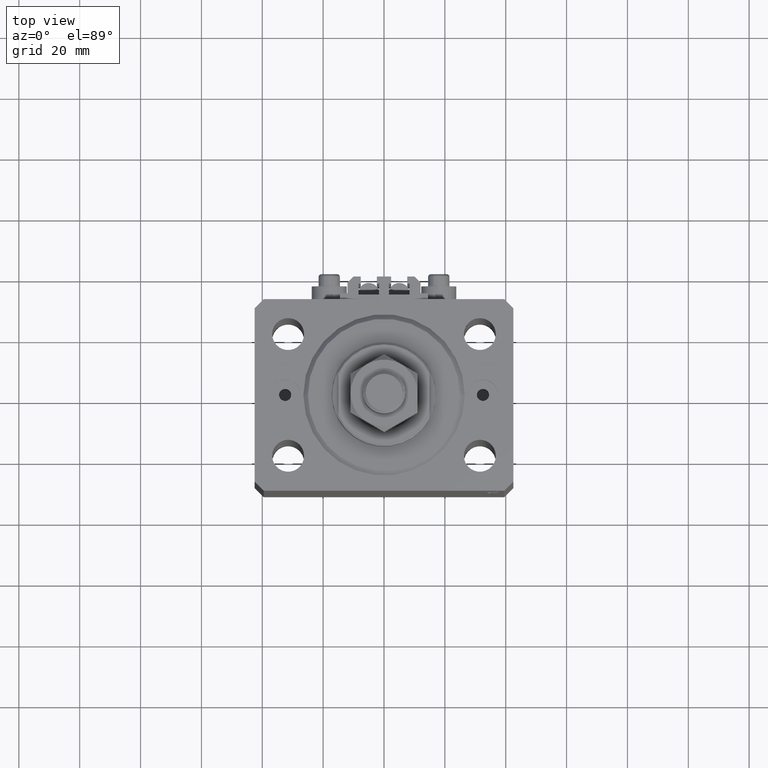
[diagram: clean part render]
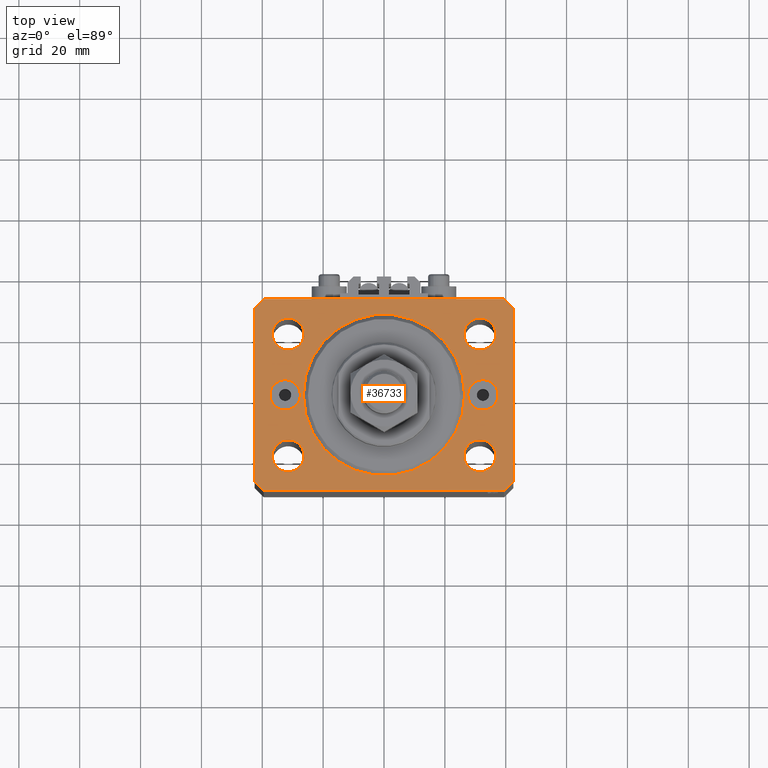
[diagram: same view with one face highlighted and labeled with its STEP entity id]
A machine part, top view. The second image highlights one B-rep face of the part: STEP entity #36733.
In plain terms, the highlighted planar face has unit normal (0, 0, 1).
Its self-contained STEP definition (entity closure, byte-faithful):
#212 = VERTEX_POINT ( 'NONE', #16234 ) ;
#606 = ORIENTED_EDGE ( 'NONE', *, *, #2875, .T. ) ;
#922 = VERTEX_POINT ( 'NONE', #44685 ) ;
#1620 = AXIS2_PLACEMENT_3D ( 'NONE', #5911, #2130, #32990 ) ;
#2130 = DIRECTION ( 'NONE',  ( 0.000000000000000000, 0.000000000000000000, 1.000000000000000000 ) ) ;
#2852 = CIRCLE ( 'NONE', #43688, 5.250000000000000888 ) ;
#2875 = EDGE_CURVE ( 'NONE', #922, #26911, #9402, .T. ) ;
#3249 = AXIS2_PLACEMENT_3D ( 'NONE', #14945, #18228, #10712 ) ;
#3610 = CARTESIAN_POINT ( 'NONE',  ( 42.50000000000051870, 28.49999999999995381, 0.000000000000000000 ) ) ;
#3971 = DIRECTION ( 'NONE',  ( 1.000000000000000000, 0.000000000000000000, 0.000000000000000000 ) ) ;
#4502 = LINE ( 'NONE', #5006, #45308 ) ;
#5006 = CARTESIAN_POINT ( 'NONE',  ( 39.50000000000000711, -31.50000000000000000, 0.000000000000000000 ) ) ;
#5229 = DIRECTION ( 'NONE',  ( 0.000000000000000000, 0.000000000000000000, 1.000000000000000000 ) ) ;
#5304 = VERTEX_POINT ( 'NONE', #11936 ) ;
#5405 = CARTESIAN_POINT ( 'NONE',  ( 0.000000000000000000, 0.000000000000000000, 0.000000000000000000 ) ) ;
#5911 = CARTESIAN_POINT ( 'NONE',  ( -31.50000000000000000, 19.99999999999999645, 0.000000000000000000 ) ) ;
#5969 = CARTESIAN_POINT ( 'NONE',  ( -36.75000000000000000, 19.99999999999999645, 0.000000000000000000 ) ) ;
#6235 = VERTEX_POINT ( 'NONE', #11644 ) ;
#6364 = EDGE_CURVE ( 'NONE', #17640, #5304, #10362, .T. ) ;
#6370 = ORIENTED_EDGE ( 'NONE', *, *, #23222, .F. ) ;
#6470 = CIRCLE ( 'NONE', #43303, 26.50000000000000355 ) ;
#6551 = DIRECTION ( 'NONE',  ( 1.000000000000000000, 0.000000000000000000, 0.000000000000000000 ) ) ;
#6722 = CIRCLE ( 'NONE', #13118, 5.249999999999997335 ) ;
#6811 = CARTESIAN_POINT ( 'NONE',  ( -32.50000000000000000, 0.000000000000000000, 0.000000000000000000 ) ) ;
#7024 = CARTESIAN_POINT ( 'NONE',  ( 31.49999999999999289, -20.00000000000000355, 0.000000000000000000 ) ) ;
#7075 = VECTOR ( 'NONE', #36672, 1000.000000000000000 ) ;
#7345 = DIRECTION ( 'NONE',  ( 0.000000000000000000, 0.000000000000000000, 1.000000000000000000 ) ) ;
#7350 = LINE ( 'NONE', #45955, #29266 ) ;
#7504 = EDGE_LOOP ( 'NONE', ( #30915, #37393 ) ) ;
#7519 = DIRECTION ( 'NONE',  ( 1.000000000000000000, 0.000000000000000000, 0.000000000000000000 ) ) ;
#7549 = VERTEX_POINT ( 'NONE', #5969 ) ;
#7674 = DIRECTION ( 'NONE',  ( 0.000000000000000000, -0.000000000000000000, -1.000000000000000000 ) ) ;
#7904 = ORIENTED_EDGE ( 'NONE', *, *, #42709, .T. ) ;
#8397 = EDGE_CURVE ( 'NONE', #30113, #6235, #15119, .T. ) ;
#8727 = ORIENTED_EDGE ( 'NONE', *, *, #42234, .T. ) ;
#9244 = DIRECTION ( 'NONE',  ( 1.000000000000000000, 0.000000000000000000, 0.000000000000000000 ) ) ;
#9402 = LINE ( 'NONE', #31954, #28573 ) ;
#9442 = CARTESIAN_POINT ( 'NONE',  ( -26.24999999999999289, -20.00000000000000355, 0.000000000000000000 ) ) ;
#9545 = DIRECTION ( 'NONE',  ( 1.000000000000000000, 0.000000000000000000, 0.000000000000000000 ) ) ;
#9763 = VERTEX_POINT ( 'NONE', #24993 ) ;
#10223 = EDGE_CURVE ( 'NONE', #47374, #21364, #23888, .T. ) ;
#10362 = LINE ( 'NONE', #13352, #7075 ) ;
#10383 = FACE_BOUND ( 'NONE', #45988, .T. ) ;
#10538 = CARTESIAN_POINT ( 'NONE',  ( 26.25000000000000355, 19.99999999999999289, 0.000000000000000000 ) ) ;
#10632 = FACE_OUTER_BOUND ( 'NONE', #14058, .T. ) ;
#10712 = DIRECTION ( 'NONE',  ( 1.000000000000000000, 0.000000000000000000, 0.000000000000000000 ) ) ;
#11112 = FACE_BOUND ( 'NONE', #25069, .T. ) ;
#11281 = AXIS2_PLACEMENT_3D ( 'NONE', #5405, #24236, #43044 ) ;
#11644 = CARTESIAN_POINT ( 'NONE',  ( 36.75000000000000000, 19.99999999999999289, 0.000000000000000000 ) ) ;
#11848 = DIRECTION ( 'NONE',  ( 0.000000000000000000, 0.000000000000000000, 1.000000000000000000 ) ) ;
#11936 = CARTESIAN_POINT ( 'NONE',  ( -39.50000000000000711, -31.50000000000000000, 0.000000000000000000 ) ) ;
#11970 = DIRECTION ( 'NONE',  ( 0.000000000000000000, 0.000000000000000000, 1.000000000000000000 ) ) ;
#12526 = ORIENTED_EDGE ( 'NONE', *, *, #6364, .T. ) ;
#12891 = CARTESIAN_POINT ( 'NONE',  ( 27.50000000000000355, 6.123233995736762338E-16, 0.000000000000000000 ) ) ;
#12963 = EDGE_LOOP ( 'NONE', ( #44095, #44669 ) ) ;
#13118 = AXIS2_PLACEMENT_3D ( 'NONE', #49135, #30304, #3971 ) ;
#13241 = VERTEX_POINT ( 'NONE', #31563 ) ;
#13328 = DIRECTION ( 'NONE',  ( -1.000000000000000000, 0.000000000000000000, 0.000000000000000000 ) ) ;
#13352 = CARTESIAN_POINT ( 'NONE',  ( -42.50000000000000000, -28.50000000000000000, 0.000000000000000000 ) ) ;
#13791 = CARTESIAN_POINT ( 'NONE',  ( 37.50000000000000000, 0.000000000000000000, 0.000000000000000000 ) ) ;
#14058 = EDGE_LOOP ( 'NONE', ( #35463, #30156, #8727, #12526, #19887, #7904, #606, #41881 ) ) ;
#14114 = CARTESIAN_POINT ( 'NONE',  ( -39.50000000000000711, 31.50000000000000000, 0.000000000000000000 ) ) ;
#14705 = CARTESIAN_POINT ( 'NONE',  ( 32.50000000000000000, 0.000000000000000000, 0.000000000000000000 ) ) ;
#14945 = CARTESIAN_POINT ( 'NONE',  ( -31.49999999999999289, -20.00000000000000355, 0.000000000000000000 ) ) ;
#15119 = CIRCLE ( 'NONE', #46376, 5.249999999999997335 ) ;
#16229 = VERTEX_POINT ( 'NONE', #32176 ) ;
#16234 = CARTESIAN_POINT ( 'NONE',  ( 26.50000000000000355, 0.000000000000000000, 0.000000000000000000 ) ) ;
#16436 = CIRCLE ( 'NONE', #46055, 5.249999999999997335 ) ;
#16831 = ORIENTED_EDGE ( 'NONE', *, *, #28376, .F. ) ;
#16930 = DIRECTION ( 'NONE',  ( 0.000000000000000000, -0.000000000000000000, -1.000000000000000000 ) ) ;
#17163 = CIRCLE ( 'NONE', #26759, 4.999999999999997335 ) ;
#17640 = VERTEX_POINT ( 'NONE', #42873 ) ;
#18228 = DIRECTION ( 'NONE',  ( 0.000000000000000000, 0.000000000000000000, 1.000000000000000000 ) ) ;
#18391 = DIRECTION ( 'NONE',  ( 1.000000000000000000, 0.000000000000000000, -0.000000000000000000 ) ) ;
#18445 = CIRCLE ( 'NONE', #48070, 5.250000000000000888 ) ;
#18889 = DIRECTION ( 'NONE',  ( 0.000000000000000000, -1.000000000000000000, 0.000000000000000000 ) ) ;
#19295 = CIRCLE ( 'NONE', #42527, 5.000000000000000888 ) ;
#19887 = ORIENTED_EDGE ( 'NONE', *, *, #36995, .T. ) ;
#20786 = DIRECTION ( 'NONE',  ( 1.000000000000000000, 0.000000000000000000, 0.000000000000000000 ) ) ;
#20871 = ORIENTED_EDGE ( 'NONE', *, *, #8397, .F. ) ;
#20876 = CIRCLE ( 'NONE', #1620, 5.250000000000000888 ) ;
#21284 = VERTEX_POINT ( 'NONE', #44145 ) ;
#21364 = VERTEX_POINT ( 'NONE', #34326 ) ;
#21374 = CARTESIAN_POINT ( 'NONE',  ( -31.50000000000000000, 19.99999999999999645, 0.000000000000000000 ) ) ;
#21402 = DIRECTION ( 'NONE',  ( -0.7071067811865471286, -0.7071067811865479058, 0.000000000000000000 ) ) ;
#21700 = EDGE_CURVE ( 'NONE', #43132, #16229, #18445, .T. ) ;
#21931 = EDGE_LOOP ( 'NONE', ( #39087, #16831 ) ) ;
#22348 = VERTEX_POINT ( 'NONE', #32986 ) ;
#22399 = CARTESIAN_POINT ( 'NONE',  ( 0.000000000000000000, 0.000000000000000000, 0.000000000000000000 ) ) ;
#22484 = CIRCLE ( 'NONE', #3249, 5.250000000000000888 ) ;
#22545 = ORIENTED_EDGE ( 'NONE', *, *, #35188, .F. ) ;
#22936 = AXIS2_PLACEMENT_3D ( 'NONE', #14705, #7674, #26241 ) ;
#23111 = EDGE_CURVE ( 'NONE', #22348, #212, #27270, .T. ) ;
#23222 = EDGE_CURVE ( 'NONE', #9763, #7549, #20876, .T. ) ;
#23888 = LINE ( 'NONE', #24877, #23999 ) ;
#23999 = VECTOR ( 'NONE', #13328, 1000.000000000000000 ) ;
#24236 = DIRECTION ( 'NONE',  ( 0.000000000000000000, 0.000000000000000000, 1.000000000000000000 ) ) ;
#24304 = EDGE_CURVE ( 'NONE', #212, #22348, #6470, .T. ) ;
#24510 = EDGE_CURVE ( 'NONE', #48308, #30856, #19295, .T. ) ;
#24844 = DIRECTION ( 'NONE',  ( 0.000000000000000000, 0.000000000000000000, 1.000000000000000000 ) ) ;
#24877 = CARTESIAN_POINT ( 'NONE',  ( 39.50000000000056843, 31.50000000000000000, 0.000000000000000000 ) ) ;
#24944 = VERTEX_POINT ( 'NONE', #12891 ) ;
#24993 = CARTESIAN_POINT ( 'NONE',  ( -26.25000000000000000, 19.99999999999999645, 0.000000000000000000 ) ) ;
#25069 = EDGE_LOOP ( 'NONE', ( #6370, #34727 ) ) ;
#25680 = VERTEX_POINT ( 'NONE', #33315 ) ;
#25918 = FACE_BOUND ( 'NONE', #7504, .T. ) ;
#26123 = EDGE_CURVE ( 'NONE', #30856, #48308, #30448, .T. ) ;
#26241 = DIRECTION ( 'NONE',  ( 1.000000000000000000, 0.000000000000000000, 0.000000000000000000 ) ) ;
#26281 = DIRECTION ( 'NONE',  ( 1.000000000000000000, 0.000000000000000000, 0.000000000000000000 ) ) ;
#26308 = EDGE_LOOP ( 'NONE', ( #22545, #20871 ) ) ;
#26703 = EDGE_CURVE ( 'NONE', #16229, #43132, #22484, .T. ) ;
#26759 = AXIS2_PLACEMENT_3D ( 'NONE', #47028, #16930, #35239 ) ;
#26911 = VERTEX_POINT ( 'NONE', #29464 ) ;
#27270 = CIRCLE ( 'NONE', #11281, 26.50000000000000355 ) ;
#27635 = CARTESIAN_POINT ( 'NONE',  ( 0.000000000000000000, 0.000000000000000000, 0.000000000000000000 ) ) ;
#28376 = EDGE_CURVE ( 'NONE', #25680, #39652, #45743, .T. ) ;
#28573 = VECTOR ( 'NONE', #40753, 1000.000000000000000 ) ;
#29266 = VECTOR ( 'NONE', #18889, 1000.000000000000000 ) ;
#29464 = CARTESIAN_POINT ( 'NONE',  ( 42.50000000000051870, 28.49999999999995381, 0.000000000000000000 ) ) ;
#29671 = CARTESIAN_POINT ( 'NONE',  ( 31.49999999999999289, -20.00000000000000355, 0.000000000000000000 ) ) ;
#29914 = FACE_BOUND ( 'NONE', #46380, .T. ) ;
#29982 = AXIS2_PLACEMENT_3D ( 'NONE', #22399, #7345, #18391 ) ;
#30037 = CARTESIAN_POINT ( 'NONE',  ( -32.50000000000000000, 0.000000000000000000, 0.000000000000000000 ) ) ;
#30107 = DIRECTION ( 'NONE',  ( 1.000000000000000000, 0.000000000000000000, 0.000000000000000000 ) ) ;
#30113 = VERTEX_POINT ( 'NONE', #10538 ) ;
#30156 = ORIENTED_EDGE ( 'NONE', *, *, #48916, .T. ) ;
#30304 = DIRECTION ( 'NONE',  ( 0.000000000000000000, 0.000000000000000000, 1.000000000000000000 ) ) ;
#30431 = LINE ( 'NONE', #3610, #32438 ) ;
#30448 = CIRCLE ( 'NONE', #32044, 5.000000000000000888 ) ;
#30856 = VERTEX_POINT ( 'NONE', #38401 ) ;
#30915 = ORIENTED_EDGE ( 'NONE', *, *, #21700, .F. ) ;
#31563 = CARTESIAN_POINT ( 'NONE',  ( 39.50000000000000711, -31.50000000000000000, 0.000000000000000000 ) ) ;
#31954 = CARTESIAN_POINT ( 'NONE',  ( 42.50000000000000711, -28.50000000000000355, 0.000000000000000000 ) ) ;
#32044 = AXIS2_PLACEMENT_3D ( 'NONE', #6811, #49186, #37632 ) ;
#32047 = CARTESIAN_POINT ( 'NONE',  ( 31.50000000000000000, 19.99999999999999289, 0.000000000000000000 ) ) ;
#32166 = LINE ( 'NONE', #14114, #46515 ) ;
#32176 = CARTESIAN_POINT ( 'NONE',  ( -36.74999999999999289, -20.00000000000000355, 0.000000000000000000 ) ) ;
#32438 = VECTOR ( 'NONE', #42961, 1000.000000000000114 ) ;
#32687 = ORIENTED_EDGE ( 'NONE', *, *, #23111, .F. ) ;
#32986 = CARTESIAN_POINT ( 'NONE',  ( -26.50000000000000355, 3.245314017740486554E-15, 0.000000000000000000 ) ) ;
#32990 = DIRECTION ( 'NONE',  ( 1.000000000000000000, 0.000000000000000000, 0.000000000000000000 ) ) ;
#33315 = CARTESIAN_POINT ( 'NONE',  ( 26.24999999999999645, -20.00000000000000355, 0.000000000000000000 ) ) ;
#33630 = DIRECTION ( 'NONE',  ( 0.000000000000000000, 0.000000000000000000, 1.000000000000000000 ) ) ;
#34326 = CARTESIAN_POINT ( 'NONE',  ( -39.50000000000000711, 31.50000000000000000, 0.000000000000000000 ) ) ;
#34727 = ORIENTED_EDGE ( 'NONE', *, *, #43409, .F. ) ;
#35188 = EDGE_CURVE ( 'NONE', #6235, #30113, #6722, .T. ) ;
#35239 = DIRECTION ( 'NONE',  ( 1.000000000000000000, 0.000000000000000000, 0.000000000000000000 ) ) ;
#35463 = ORIENTED_EDGE ( 'NONE', *, *, #10223, .T. ) ;
#36541 = CARTESIAN_POINT ( 'NONE',  ( 36.74999999999999289, -20.00000000000000355, 0.000000000000000000 ) ) ;
#36672 = DIRECTION ( 'NONE',  ( 0.7071067811865471286, -0.7071067811865479058, 0.000000000000000000 ) ) ;
#36695 = DIRECTION ( 'NONE',  ( 0.000000000000000000, 0.000000000000000000, 1.000000000000000000 ) ) ;
#36733 = ADVANCED_FACE ( 'NONE', ( #10632, #11112, #41462, #45702, #25918, #29914, #48986, #10383 ), #37933, .T. ) ;
#36995 = EDGE_CURVE ( 'NONE', #5304, #13241, #44662, .T. ) ;
#37286 = CARTESIAN_POINT ( 'NONE',  ( 39.50000000000056843, 31.50000000000000000, 0.000000000000000000 ) ) ;
#37393 = ORIENTED_EDGE ( 'NONE', *, *, #26703, .F. ) ;
#37632 = DIRECTION ( 'NONE',  ( 1.000000000000000000, 0.000000000000000000, 0.000000000000000000 ) ) ;
#37862 = DIRECTION ( 'NONE',  ( 0.000000000000000000, 0.000000000000000000, 1.000000000000000000 ) ) ;
#37933 = PLANE ( 'NONE',  #29982 ) ;
#38253 = ORIENTED_EDGE ( 'NONE', *, *, #39876, .T. ) ;
#38401 = CARTESIAN_POINT ( 'NONE',  ( -37.50000000000000000, 6.123233995736768255E-16, 0.000000000000000000 ) ) ;
#38739 = EDGE_CURVE ( 'NONE', #26911, #47374, #30431, .T. ) ;
#39087 = ORIENTED_EDGE ( 'NONE', *, *, #42170, .F. ) ;
#39372 = VERTEX_POINT ( 'NONE', #13791 ) ;
#39568 = CARTESIAN_POINT ( 'NONE',  ( -27.50000000000000000, 0.000000000000000000, 0.000000000000000000 ) ) ;
#39652 = VERTEX_POINT ( 'NONE', #36541 ) ;
#39866 = ORIENTED_EDGE ( 'NONE', *, *, #44180, .T. ) ;
#39876 = EDGE_CURVE ( 'NONE', #39372, #24944, #17163, .T. ) ;
#40753 = DIRECTION ( 'NONE',  ( 8.886653596232072440E-15, 1.000000000000000000, 0.000000000000000000 ) ) ;
#40967 = AXIS2_PLACEMENT_3D ( 'NONE', #7024, #37862, #7519 ) ;
#40977 = ORIENTED_EDGE ( 'NONE', *, *, #24304, .F. ) ;
#41462 = FACE_BOUND ( 'NONE', #26308, .T. ) ;
#41881 = ORIENTED_EDGE ( 'NONE', *, *, #38739, .T. ) ;
#42055 = VECTOR ( 'NONE', #6551, 1000.000000000000000 ) ;
#42170 = EDGE_CURVE ( 'NONE', #39652, #25680, #16436, .T. ) ;
#42234 = EDGE_CURVE ( 'NONE', #21284, #17640, #7350, .T. ) ;
#42527 = AXIS2_PLACEMENT_3D ( 'NONE', #30037, #11970, #26281 ) ;
#42709 = EDGE_CURVE ( 'NONE', #13241, #922, #4502, .T. ) ;
#42873 = CARTESIAN_POINT ( 'NONE',  ( -42.50000000000000000, -28.50000000000000000, 0.000000000000000000 ) ) ;
#42961 = DIRECTION ( 'NONE',  ( -0.7071067811865356934, 0.7071067811865594521, 0.000000000000000000 ) ) ;
#43044 = DIRECTION ( 'NONE',  ( 1.000000000000000000, 0.000000000000000000, 0.000000000000000000 ) ) ;
#43132 = VERTEX_POINT ( 'NONE', #9442 ) ;
#43303 = AXIS2_PLACEMENT_3D ( 'NONE', #27635, #11848, #20786 ) ;
#43409 = EDGE_CURVE ( 'NONE', #7549, #9763, #2852, .T. ) ;
#43647 = CARTESIAN_POINT ( 'NONE',  ( -31.49999999999999289, -20.00000000000000355, 0.000000000000000000 ) ) ;
#43688 = AXIS2_PLACEMENT_3D ( 'NONE', #21374, #33630, #30107 ) ;
#44095 = ORIENTED_EDGE ( 'NONE', *, *, #24510, .F. ) ;
#44145 = CARTESIAN_POINT ( 'NONE',  ( -42.50000000000000000, 28.50000000000000000, 0.000000000000000000 ) ) ;
#44180 = EDGE_CURVE ( 'NONE', #24944, #39372, #44553, .T. ) ;
#44553 = CIRCLE ( 'NONE', #22936, 4.999999999999997335 ) ;
#44662 = LINE ( 'NONE', #48927, #42055 ) ;
#44669 = ORIENTED_EDGE ( 'NONE', *, *, #26123, .F. ) ;
#44685 = CARTESIAN_POINT ( 'NONE',  ( 42.50000000000000711, -28.50000000000000355, 0.000000000000000000 ) ) ;
#44977 = DIRECTION ( 'NONE',  ( 1.000000000000000000, 0.000000000000000000, 0.000000000000000000 ) ) ;
#45308 = VECTOR ( 'NONE', #47122, 1000.000000000000000 ) ;
#45702 = FACE_BOUND ( 'NONE', #21931, .T. ) ;
#45743 = CIRCLE ( 'NONE', #40967, 5.249999999999997335 ) ;
#45955 = CARTESIAN_POINT ( 'NONE',  ( -42.50000000000000000, 28.50000000000000000, 0.000000000000000000 ) ) ;
#45988 = EDGE_LOOP ( 'NONE', ( #38253, #39866 ) ) ;
#46055 = AXIS2_PLACEMENT_3D ( 'NONE', #29671, #36695, #44977 ) ;
#46376 = AXIS2_PLACEMENT_3D ( 'NONE', #32047, #5229, #9244 ) ;
#46380 = EDGE_LOOP ( 'NONE', ( #40977, #32687 ) ) ;
#46515 = VECTOR ( 'NONE', #21402, 1000.000000000000000 ) ;
#47028 = CARTESIAN_POINT ( 'NONE',  ( 32.50000000000000000, 0.000000000000000000, 0.000000000000000000 ) ) ;
#47122 = DIRECTION ( 'NONE',  ( 0.7071067811865483499, 0.7071067811865466846, 0.000000000000000000 ) ) ;
#47374 = VERTEX_POINT ( 'NONE', #37286 ) ;
#48070 = AXIS2_PLACEMENT_3D ( 'NONE', #43647, #24844, #9545 ) ;
#48308 = VERTEX_POINT ( 'NONE', #39568 ) ;
#48916 = EDGE_CURVE ( 'NONE', #21364, #21284, #32166, .T. ) ;
#48927 = CARTESIAN_POINT ( 'NONE',  ( -39.50000000000000711, -31.50000000000000000, 0.000000000000000000 ) ) ;
#48986 = FACE_BOUND ( 'NONE', #12963, .T. ) ;
#49135 = CARTESIAN_POINT ( 'NONE',  ( 31.50000000000000000, 19.99999999999999289, 0.000000000000000000 ) ) ;
#49186 = DIRECTION ( 'NONE',  ( 0.000000000000000000, 0.000000000000000000, 1.000000000000000000 ) ) ;